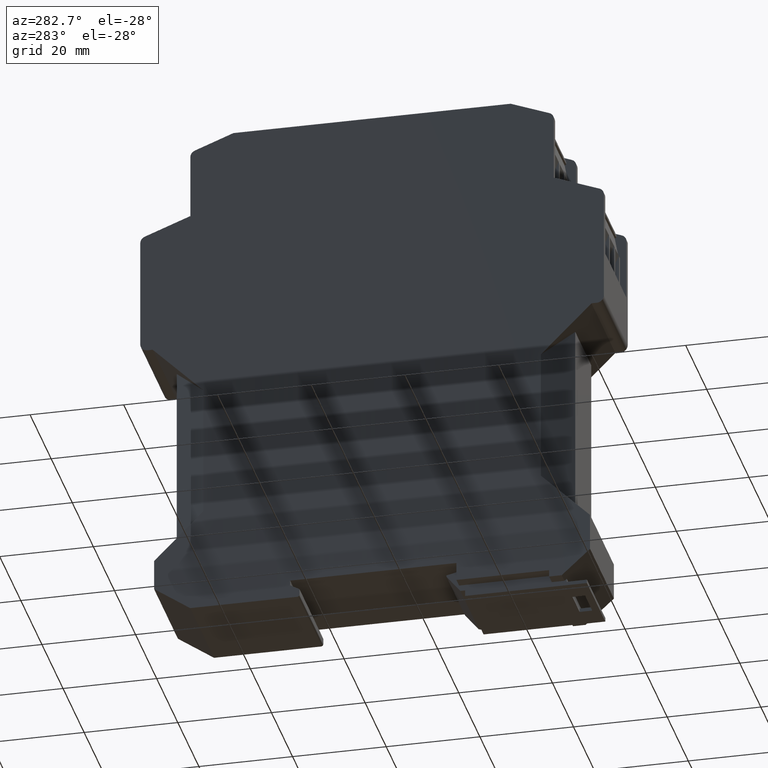
[diagram: clean part render]
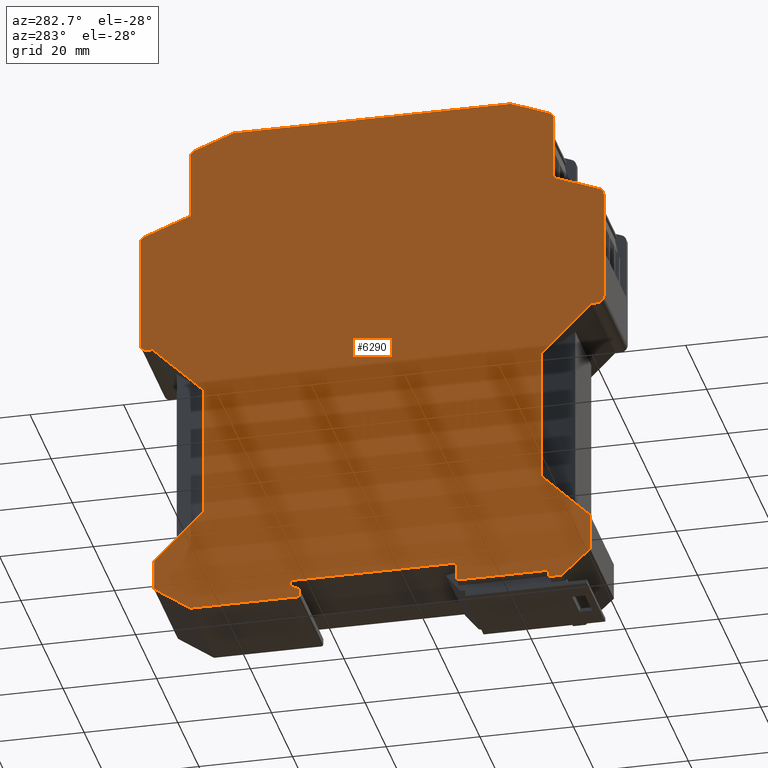
[diagram: same view with one face highlighted and labeled with its STEP entity id]
A machine part, auxiliary view. The second image highlights one B-rep face of the part: STEP entity #6290.
In plain terms, the highlighted planar face has unit normal (-1, 0, 0).
Its self-contained STEP definition (entity closure, byte-faithful):
#3190=CARTESIAN_POINT('',(-1.39195321935404E-11,88.500000000059,
3.5527136788005E-15));
#3200=DIRECTION('',(1.22460635382238E-16,0.,-1.));
#3210=DIRECTION('',(-1.,0.,-1.22460635382238E-16));
#3220=AXIS2_PLACEMENT_3D('',#3190,#3200,#3210);
#3230=PLANE('',#3220);
#3240=CARTESIAN_POINT('',(47.9999999999665,83.3684175876561,
1.06581410364015E-14));
#3250=DIRECTION('',(0.,0.,-1.));
#3260=DIRECTION('',(-1.,0.,0.));
#3270=AXIS2_PLACEMENT_3D('',#3240,#3250,#3260);
#3280=CIRCLE('',#3270,1.49999999999999);
#3290=CARTESIAN_POINT('',(48.5367137884849,84.7691096698835,
1.06581410364015E-14));
#3300=VERTEX_POINT('',#3290);
#3310=CARTESIAN_POINT('',(49.4999999999665,83.3684175876573,
1.06581410364015E-14));
#3320=VERTEX_POINT('',#3310);
#3330=EDGE_CURVE('',#3300,#3320,#3280,.T.);
#3340=ORIENTED_EDGE('',*,*,#3330,.T.);
#3350=CARTESIAN_POINT('',(-1.39195321935404E-11,103.367289719734,
3.5527136788005E-15));
#3360=DIRECTION('',(-0.933794721484838,0.357809192345659,
-1.14353094909613E-16));
#3370=VECTOR('',#3360,1.);
#3380=LINE('',#3350,#3370);
#3390=CARTESIAN_POINT('',(38.7999999999999,88.5000000000611,
7.105427357601E-15));
#3400=VERTEX_POINT('',#3390);
#3410=EDGE_CURVE('',#3300,#3400,#3380,.T.);
#3420=ORIENTED_EDGE('',*,*,#3410,.F.);
#3430=CARTESIAN_POINT('',(38.7999999999999,-7.99999999993773,
7.105427357601E-15));
#3440=DIRECTION('',(0.,1.,0.));
#3450=VECTOR('',#3440,1.);
#3460=LINE('',#3430,#3450);
#3470=CARTESIAN_POINT('',(38.8000000000141,102.437529439802,
7.105427357601E-15));
#3480=VERTEX_POINT('',#3470);
#3490=EDGE_CURVE('',#3400,#3480,#3460,.T.);
#3500=ORIENTED_EDGE('',*,*,#3490,.F.);
#3510=CARTESIAN_POINT('',(37.3000000000142,102.437529439817,
7.105427357601E-15));
#3520=DIRECTION('',(0.,0.,-1.));
#3530=DIRECTION('',(-1.,0.,0.));
#3540=AXIS2_PLACEMENT_3D('',#3510,#3520,#3530);
#3550=CIRCLE('',#3540,1.49999999999999);
#3560=CARTESIAN_POINT('',(37.8375519243449,103.837900079568,
7.105427357601E-15));
#3570=VERTEX_POINT('',#3560);
#3580=EDGE_CURVE('',#3570,#3480,#3550,.T.);
#3590=ORIENTED_EDGE('',*,*,#3580,.T.);
#3600=CARTESIAN_POINT('',(-1.39195321935404E-11,118.362375437131,
3.5527136788005E-15));
#3610=DIRECTION('',(-0.933580426497062,0.358367949545665,
-1.14326852209251E-16));
#3620=VECTOR('',#3610,1.);
#3630=LINE('',#3600,#3620);
#3640=CARTESIAN_POINT('',(29.6000000000141,107.000000000059,
7.105427357601E-15));
#3650=VERTEX_POINT('',#3640);
#3660=EDGE_CURVE('',#3570,#3650,#3630,.T.);
#3670=ORIENTED_EDGE('',*,*,#3660,.F.);
#3680=CARTESIAN_POINT('',(-1.39195321935404E-11,107.000000000059,
3.5527136788005E-15));
#3690=DIRECTION('',(-1.,0.,-1.22460635382238E-16));
#3700=VECTOR('',#3690,1.);
#3710=LINE('',#3680,#3700);
#3720=CARTESIAN_POINT('',(-29.6000000000285,107.000000000059,0.));
#3730=VERTEX_POINT('',#3720);
#3740=EDGE_CURVE('',#3650,#3730,#3710,.T.);
#3750=ORIENTED_EDGE('',*,*,#3740,.F.);
#3760=CARTESIAN_POINT('',(-1.39195321935404E-11,118.362375437126,
3.5527136788005E-15));
#3770=DIRECTION('',(-0.933580426497062,-0.358367949545665,
-1.14326852209251E-16));
#3780=VECTOR('',#3770,1.);
#3790=LINE('',#3760,#3780);
#3800=CARTESIAN_POINT('',(-37.837551924356,103.837900079559,0.));
#3810=VERTEX_POINT('',#3800);
#3820=EDGE_CURVE('',#3730,#3810,#3790,.T.);
#3830=ORIENTED_EDGE('',*,*,#3820,.F.);
#3840=CARTESIAN_POINT('',(-37.3000000000285,102.437529439817,0.));
#3850=DIRECTION('',(0.,0.,-1.));
#3860=DIRECTION('',(-1.,0.,0.));
#3870=AXIS2_PLACEMENT_3D('',#3840,#3850,#3860);
#3880=CIRCLE('',#3870,1.49999999999999);
#3890=CARTESIAN_POINT('',(-38.8000000000143,102.437529439802,0.));
#3900=VERTEX_POINT('',#3890);
#3910=EDGE_CURVE('',#3900,#3810,#3880,.T.);
#3920=ORIENTED_EDGE('',*,*,#3910,.T.);
#3930=CARTESIAN_POINT('',(-38.8000000000143,-7.99999999993773,0.));
#3940=DIRECTION('',(0.,-1.,-0.));
#3950=VECTOR('',#3940,1.);
#3960=LINE('',#3930,#3950);
#3970=CARTESIAN_POINT('',(-38.8000000000143,88.5000000000611,0.));
#3980=VERTEX_POINT('',#3970);
#3990=EDGE_CURVE('',#3900,#3980,#3960,.T.);
#4000=ORIENTED_EDGE('',*,*,#3990,.F.);
#4010=CARTESIAN_POINT('',(-1.39195321935404E-11,103.367289719729,
3.5527136788005E-15));
#4020=DIRECTION('',(-0.933794721484838,-0.357809192345659,
-1.14353094909613E-16));
#4030=VECTOR('',#4020,1.);
#4040=LINE('',#4010,#4030);
#4050=CARTESIAN_POINT('',(-48.5367137885062,84.7691096698839,
-3.5527136788005E-15));
#4060=VERTEX_POINT('',#4050);
#4070=EDGE_CURVE('',#3980,#4060,#4040,.T.);
#4080=ORIENTED_EDGE('',*,*,#4070,.F.);
#4090=CARTESIAN_POINT('',(-47.999999999988,83.3684175876566,
-3.5527136788005E-15));
#4100=DIRECTION('',(0.,0.,1.));
#4110=DIRECTION('',(1.,0.,0.));
#4120=AXIS2_PLACEMENT_3D('',#4090,#4100,#4110);
#4130=CIRCLE('',#4120,1.5);
#4140=CARTESIAN_POINT('',(-49.4999999999339,83.3684175876573,
-3.5527136788005E-15));
#4150=VERTEX_POINT('',#4140);
#4160=EDGE_CURVE('',#4060,#4150,#4130,.T.);
#4170=ORIENTED_EDGE('',*,*,#4160,.F.);
#4180=CARTESIAN_POINT('',(-49.4999999999075,-7.99999999993773,
-3.5527136788005E-15));
#4190=DIRECTION('',(0.,-1.,-0.));
#4200=VECTOR('',#4190,1.);
#4210=LINE('',#4180,#4200);
#4220=CARTESIAN_POINT('',(-49.4999999999994,59.4000000000015,
-3.5527136788005E-15));
#4230=VERTEX_POINT('',#4220);
#4240=EDGE_CURVE('',#4150,#4230,#4210,.T.);
#4250=ORIENTED_EDGE('',*,*,#4240,.F.);
#4260=CARTESIAN_POINT('',(-47.9999999999994,59.4000000000015,
-3.5527136788005E-15));
#4270=DIRECTION('',(0.,0.,-1.));
#4280=DIRECTION('',(-1.,0.,0.));
#4290=AXIS2_PLACEMENT_3D('',#4260,#4270,#4280);
#4300=CIRCLE('',#4290,1.5);
#4310=CARTESIAN_POINT('',(-47.9999999999996,57.9000000000015,
-3.5527136788005E-15));
#4320=VERTEX_POINT('',#4310);
#4330=EDGE_CURVE('',#4320,#4230,#4300,.T.);
#4340=ORIENTED_EDGE('',*,*,#4330,.T.);
#4350=CARTESIAN_POINT('',(-1.39195321935404E-11,57.8999999999968,
3.5527136788005E-15));
#4360=DIRECTION('',(1.,-9.89E-14,1.22460635382238E-16));
#4370=VECTOR('',#4360,1.);
#4380=LINE('',#4350,#4370);
#4390=CARTESIAN_POINT('',(-46.8500000000001,57.9000000000014,
-3.5527136788005E-15));
#4400=VERTEX_POINT('',#4390);
#4410=EDGE_CURVE('',#4320,#4400,#4380,.T.);
#4420=ORIENTED_EDGE('',*,*,#4410,.F.);
#4430=CARTESIAN_POINT('',(-1.39195321935404E-11,11.0500000000157,
3.5527136788005E-15));
#4440=DIRECTION('',(0.707106781186551,-0.707106781186544,
8.65927457071939E-17));
#4450=VECTOR('',#4440,1.);
#4460=LINE('',#4430,#4450);
#4470=CARTESIAN_POINT('',(-36.0499999999998,47.1000000000012,0.));
#4480=VERTEX_POINT('',#4470);
#4490=EDGE_CURVE('',#4400,#4480,#4460,.T.);
#4500=ORIENTED_EDGE('',*,*,#4490,.F.);
#4510=CARTESIAN_POINT('',(-36.0499999999999,-7.99999999993773,0.));
#4520=DIRECTION('',(0.,1.,0.));
#4530=VECTOR('',#4520,1.);
#4540=LINE('',#4510,#4530);
#4550=CARTESIAN_POINT('',(-36.0499999999998,18.4999999999992,
-3.5527136788005E-15));
#4560=VERTEX_POINT('',#4550);
#4570=EDGE_CURVE('',#4560,#4480,#4540,.T.);
#4580=ORIENTED_EDGE('',*,*,#4570,.T.);
#4590=CARTESIAN_POINT('',(-1.39195321935404E-11,54.5499999999784,0.));
#4600=DIRECTION('',(-0.707106781186613,-0.707106781186482,
-8.65927457072016E-17));
#4610=VECTOR('',#4600,1.);
#4620=LINE('',#4590,#4610);
#4630=CARTESIAN_POINT('',(-46.5499999999169,8.00000000008406,
-3.5527136788005E-15));
#4640=VERTEX_POINT('',#4630);
#4650=EDGE_CURVE('',#4560,#4640,#4620,.T.);
#4660=ORIENTED_EDGE('',*,*,#4650,.F.);
#4670=CARTESIAN_POINT('',(-46.5499999999169,-7.99999999993773,
-3.5527136788005E-15));
#4680=DIRECTION('',(0.,-1.,-0.));
#4690=VECTOR('',#4680,1.);
#4700=LINE('',#4670,#4690);
#4710=CARTESIAN_POINT('',(-46.5499999999169,6.3522520576953E-12,
-1.06581410364015E-14));
#4720=VERTEX_POINT('',#4710);
#4730=EDGE_CURVE('',#4640,#4720,#4700,.T.);
#4740=ORIENTED_EDGE('',*,*,#4730,.F.);
#4750=CARTESIAN_POINT('',(-1.39195321935404E-11,-42.3181818180724,
-3.5527136788005E-15));
#4760=DIRECTION('',(0.739940073396061,-0.672672793996183,
9.06135315328613E-17));
#4770=VECTOR('',#4760,1.);
#4780=LINE('',#4750,#4770);
#4790=CARTESIAN_POINT('',(-40.4999999999324,-5.49999999997763,0.));
#4800=VERTEX_POINT('',#4790);
#4810=EDGE_CURVE('',#4720,#4800,#4780,.T.);
#4820=ORIENTED_EDGE('',*,*,#4810,.F.);
#4830=CARTESIAN_POINT('',(-1.39195321935404E-11,-5.49999999997763,
3.5527136788005E-15));
#4840=DIRECTION('',(1.,0.,1.22460635382238E-16));
#4850=VECTOR('',#4840,1.);
#4860=LINE('',#4830,#4850);
#4870=CARTESIAN_POINT('',(-37.7999999999074,-5.49999999997763,0.));
#4880=VERTEX_POINT('',#4870);
#4890=EDGE_CURVE('',#4800,#4880,#4860,.T.);
#4900=ORIENTED_EDGE('',*,*,#4890,.F.);
#4910=CARTESIAN_POINT('',(-37.7999999999074,-7.99999999993773,0.));
#4920=DIRECTION('',(0.,1.,0.));
#4930=VECTOR('',#4920,1.);
#4940=LINE('',#4910,#4930);
#4950=CARTESIAN_POINT('',(-37.7999999999074,-3.99999999999904,0.));
#4960=VERTEX_POINT('',#4950);
#4970=EDGE_CURVE('',#4880,#4960,#4940,.T.);
#4980=ORIENTED_EDGE('',*,*,#4970,.F.);
#4990=CARTESIAN_POINT('',(-1.39195321935404E-11,-4.00000000000265,
3.5527136788005E-15));
#5000=DIRECTION('',(1.,-9.53855596613063E-14,1.22460635382238E-16));
#5010=VECTOR('',#5000,1.);
#5020=LINE('',#4990,#5010);
#5030=CARTESIAN_POINT('',(-17.999999999907,-4.00000000000093,0.));
#5040=VERTEX_POINT('',#5030);
#5050=EDGE_CURVE('',#4960,#5040,#5020,.T.);
#5060=ORIENTED_EDGE('',*,*,#5050,.F.);
#5070=CARTESIAN_POINT('',(-17.9999999999071,-7.99999999993773,0.));
#5080=DIRECTION('',(2.13E-14,1.,2.60841153364166E-30));
#5090=VECTOR('',#5080,1.);
#5100=LINE('',#5070,#5090);
#5110=CARTESIAN_POINT('',(-17.999999999907,7.8159700933611E-13,0.));
#5120=VERTEX_POINT('',#5110);
#5130=EDGE_CURVE('',#5040,#5120,#5100,.T.);
#5140=ORIENTED_EDGE('',*,*,#5130,.F.);
#5150=CARTESIAN_POINT('',(-1.39195321935404E-11,7.8159700933611E-13,
3.5527136788005E-15));
#5160=DIRECTION('',(1.,0.,1.22460635382238E-16));
#5170=VECTOR('',#5160,1.);
#5180=LINE('',#5150,#5170);
#5190=CARTESIAN_POINT('',(17.5000000000944,7.8159700933611E-13,
7.105427357601E-15));
#5200=VERTEX_POINT('',#5190);
#5210=EDGE_CURVE('',#5120,#5200,#5180,.T.);
#5220=ORIENTED_EDGE('',*,*,#5210,.F.);
#5230=CARTESIAN_POINT('',(17.5000000000944,-7.99999999993773,
7.105427357601E-15));
#5240=DIRECTION('',(4.E-16,-1.,4.89842541528951E-32));
#5250=VECTOR('',#5240,1.);
#5260=LINE('',#5230,#5250);
#5270=CARTESIAN_POINT('',(17.5000000000944,-1.09989609279391,
7.105427357601E-15));
#5280=VERTEX_POINT('',#5270);
#5290=EDGE_CURVE('',#5200,#5280,#5260,.T.);
#5300=ORIENTED_EDGE('',*,*,#5290,.F.);
#5310=CARTESIAN_POINT('',(-1.39195321935404E-11,-11.2035258036739,0.));
#5320=DIRECTION('',(-0.86602540378446,-0.499999999999962,
-1.06054021204604E-16));
#5330=VECTOR('',#5320,1.);
#5340=LINE('',#5310,#5330);
#5350=CARTESIAN_POINT('',(15.5000000000943,-2.25459663117313,
7.105427357601E-15));
#5360=VERTEX_POINT('',#5350);
#5370=EDGE_CURVE('',#5280,#5360,#5340,.T.);
#5380=ORIENTED_EDGE('',*,*,#5370,.F.);
#5390=CARTESIAN_POINT('',(15.5000000000952,-7.99999999993773,
7.105427357601E-15));
#5400=DIRECTION('',(1.54E-13,-1.,1.88589378488646E-29));
#5410=VECTOR('',#5400,1.);
#5420=LINE('',#5390,#5410);
#5430=CARTESIAN_POINT('',(15.5000000000945,-3.49999999999909,
7.105427357601E-15));
#5440=VERTEX_POINT('',#5430);
#5450=EDGE_CURVE('',#5360,#5440,#5420,.T.);
#5460=ORIENTED_EDGE('',*,*,#5450,.F.);
#5470=CARTESIAN_POINT('',(16.0000000000943,-3.49999999999909,
7.105427357601E-15));
#5480=DIRECTION('',(0.,0.,-1.));
#5490=DIRECTION('',(-1.,0.,0.));
#5500=AXIS2_PLACEMENT_3D('',#5470,#5480,#5490);
#5510=CIRCLE('',#5500,0.499999999999808);
#5520=CARTESIAN_POINT('',(16.0000000000944,-3.99999999999915,
7.105427357601E-15));
#5530=VERTEX_POINT('',#5520);
#5540=EDGE_CURVE('',#5530,#5440,#5510,.T.);
#5550=ORIENTED_EDGE('',*,*,#5540,.T.);
#5560=CARTESIAN_POINT('',(-1.39195321935404E-11,-3.99999999999915,
3.5527136788005E-15));
#5570=DIRECTION('',(1.,0.,1.22460635382238E-16));
#5580=VECTOR('',#5570,1.);
#5590=LINE('',#5560,#5580);
#5600=CARTESIAN_POINT('',(38.8380007636769,-3.99999999999915,
7.105427357601E-15));
#5610=VERTEX_POINT('',#5600);
#5620=EDGE_CURVE('',#5530,#5610,#5590,.T.);
#5630=ORIENTED_EDGE('',*,*,#5620,.F.);
#5640=CARTESIAN_POINT('',(-1.39195321935404E-11,-31.1946609037305,0.));
#5650=DIRECTION('',(0.819152044288986,0.573576436351054,
1.00313879818288E-16));
#5660=VECTOR('',#5650,1.);
#5670=LINE('',#5640,#5660);
#5680=CARTESIAN_POINT('',(46.5500000000976,1.40000000001026,
1.06581410364015E-14));
#5690=VERTEX_POINT('',#5680);
#5700=EDGE_CURVE('',#5610,#5690,#5670,.T.);
#5710=ORIENTED_EDGE('',*,*,#5700,.F.);
#5720=CARTESIAN_POINT('',(46.5500000000976,-7.99999999993773,
1.06581410364015E-14));
#5730=DIRECTION('',(0.,1.,0.));
#5740=VECTOR('',#5730,1.);
#5750=LINE('',#5720,#5740);
#5760=CARTESIAN_POINT('',(46.5500000000977,7.99999999999633,
1.06581410364015E-14));
#5770=VERTEX_POINT('',#5760);
#5780=EDGE_CURVE('',#5690,#5770,#5750,.T.);
#5790=ORIENTED_EDGE('',*,*,#5780,.F.);
#5800=CARTESIAN_POINT('',(-1.39195321935404E-11,54.5500000000981,
3.5527136788005E-15));
#5810=DIRECTION('',(-0.707106781186613,0.707106781186482,
-8.65927457072016E-17));
#5820=VECTOR('',#5810,1.);
#5830=LINE('',#5800,#5820);
#5840=CARTESIAN_POINT('',(36.0500000000917,18.4999999999992,
7.105427357601E-15));
#5850=VERTEX_POINT('',#5840);
#5860=EDGE_CURVE('',#5770,#5850,#5830,.T.);
#5870=ORIENTED_EDGE('',*,*,#5860,.F.);
#5880=CARTESIAN_POINT('',(36.0500000000919,-7.99999999993773,
7.105427357601E-15));
#5890=DIRECTION('',(0.,1.,0.));
#5900=VECTOR('',#5890,1.);
#5910=LINE('',#5880,#5900);
#5920=CARTESIAN_POINT('',(36.0500000000917,47.1000000000001,
7.105427357601E-15));
#5930=VERTEX_POINT('',#5920);
#5940=EDGE_CURVE('',#5850,#5930,#5910,.T.);
#5950=ORIENTED_EDGE('',*,*,#5940,.F.);
#5960=CARTESIAN_POINT('',(-1.39195321935404E-11,11.0499999998948,
3.5527136788005E-15));
#5970=DIRECTION('',(0.707106781186551,0.707106781186544,
8.65927457071939E-17));
#5980=VECTOR('',#5970,1.);
#5990=LINE('',#5960,#5980);
#6000=CARTESIAN_POINT('',(46.8500000000933,57.9000000000015,
1.06581410364015E-14));
#6010=VERTEX_POINT('',#6000);
#6020=EDGE_CURVE('',#5930,#6010,#5990,.T.);
#6030=ORIENTED_EDGE('',*,*,#6020,.F.);
#6040=CARTESIAN_POINT('',(-1.39195321935404E-11,57.9000000000012,
3.5527136788005E-15));
#6050=DIRECTION('',(1.,6.00576601826644E-15,1.22460635382238E-16));
#6060=VECTOR('',#6050,1.);
#6070=LINE('',#6040,#6060);
#6080=CARTESIAN_POINT('',(48.0000000000925,57.9000000000015,
1.06581410364015E-14));
#6090=VERTEX_POINT('',#6080);
#6100=EDGE_CURVE('',#6010,#6090,#6070,.T.);
#6110=ORIENTED_EDGE('',*,*,#6100,.F.);
#6120=CARTESIAN_POINT('',(48.0000000000925,59.4000000000015,
1.06581410364015E-14));
#6130=DIRECTION('',(0.,0.,-1.));
#6140=DIRECTION('',(-1.,0.,0.));
#6150=AXIS2_PLACEMENT_3D('',#6120,#6130,#6140);
#6160=CIRCLE('',#6150,1.5);
#6170=CARTESIAN_POINT('',(49.5000000000006,59.4000000000015,
1.06581410364015E-14));
#6180=VERTEX_POINT('',#6170);
#6190=EDGE_CURVE('',#6180,#6090,#6160,.T.);
#6200=ORIENTED_EDGE('',*,*,#6190,.T.);
#6210=CARTESIAN_POINT('',(49.4999999999431,-7.99999999993773,
1.06581410364015E-14));
#6220=DIRECTION('',(0.,1.,0.));
#6230=VECTOR('',#6220,1.);
#6240=LINE('',#6210,#6230);
#6250=EDGE_CURVE('',#6180,#3320,#6240,.T.);
#6260=ORIENTED_EDGE('',*,*,#6250,.F.);
#6270=EDGE_LOOP('',(#6260,#6200,#6110,#6030,#5950,#5870,#5790,#5710,
#5630,#5550,#5460,#5380,#5300,#5220,#5140,#5060,#4980,#4900,#4820,#4740,
#4660,#4580,#4500,#4420,#4340,#4250,#4170,#4080,#4000,#3920,#3830,#3750,
#3670,#3590,#3500,#3420,#3340));
#6280=FACE_OUTER_BOUND('',#6270,.T.);
#6290=ADVANCED_FACE('',(#6280),#3230,.T.);